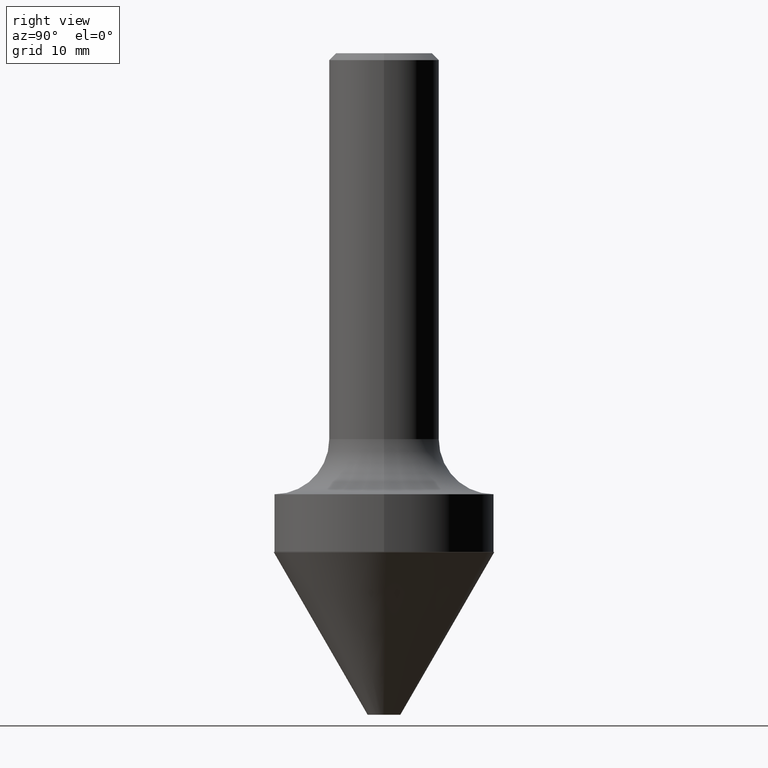
[diagram: clean part render]
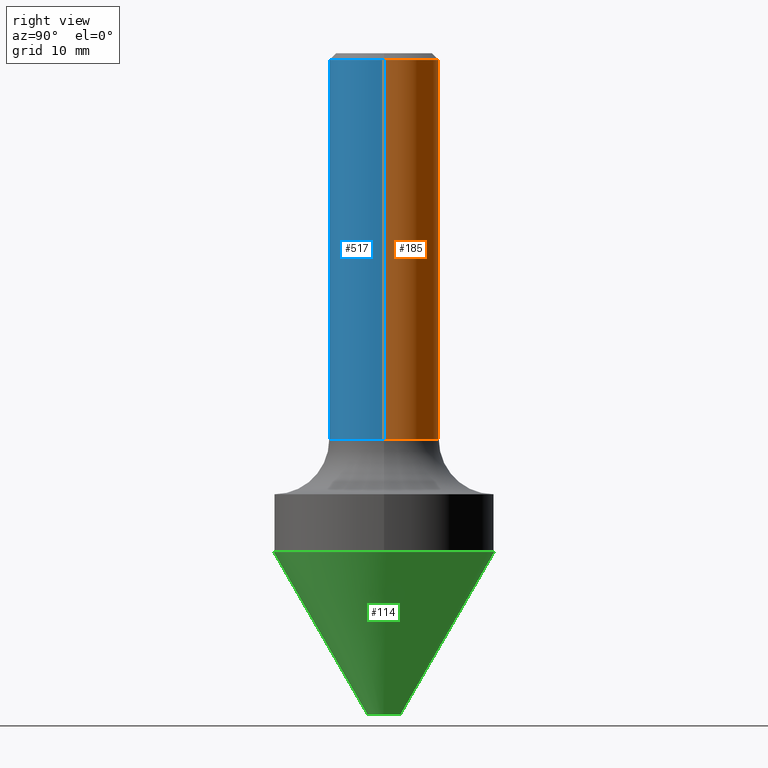
[diagram: same view with three faces highlighted in distinct colors, each labeled with its STEP entity id]
A machine part, right view with three faces highlighted in distinct colors.
Their STEP definitions:

[orange] entity #185 — the highlighted cylindrical surface (partial cylindrical patch) has radius 6.35 mm, axis along (-0, 0, 1).
#9 = DIRECTION ( 'NONE',  ( -2.445468806185136597E-29, 3.491481338843145583E-15, 1.000000000000000000 ) ) ;
#13 = AXIS2_PLACEMENT_3D ( 'NONE', #374, #94, #49 ) ;
#39 = VERTEX_POINT ( 'NONE', #82 ) ;
#49 = DIRECTION ( 'NONE',  ( 1.000000000000000000, -6.982962677686266711E-15, 0.000000000000000000 ) ) ;
#82 = CARTESIAN_POINT ( 'NONE',  ( -0.2500000000000001665, -3.881992251230523010E-15, -1.750000000000000444 ) ) ;
#89 = CARTESIAN_POINT ( 'NONE',  ( 0.2500000000000000000, -1.824058717214789841E-15, -0.03120000000000021020 ) ) ;
#94 = DIRECTION ( 'NONE',  ( -2.445468806185136597E-29, 3.491481338843145583E-15, 1.000000000000000000 ) ) ;
#107 = VERTEX_POINT ( 'NONE', #275 ) ;
#124 = ORIENTED_EDGE ( 'NONE', *, *, #384, .T. ) ;
#125 = CYLINDRICAL_SURFACE ( 'NONE', #297, 0.2500000000000000555 ) ;
#176 = LINE ( 'NONE', #460, #388 ) ;
#184 = AXIS2_PLACEMENT_3D ( 'NONE', #401, #285, #245 ) ;
#185 = ADVANCED_FACE ( 'NONE', ( #455 ), #125, .T. ) ;
#193 = EDGE_CURVE ( 'NONE', #39, #273, #176, .T. ) ;
#225 = EDGE_CURVE ( 'NONE', #354, #273, #227, .T. ) ;
#227 = CIRCLE ( 'NONE', #13, 0.2500000000000000000 ) ;
#229 = ORIENTED_EDGE ( 'NONE', *, *, #225, .F. ) ;
#240 = ORIENTED_EDGE ( 'NONE', *, *, #193, .T. ) ;
#241 = DIRECTION ( 'NONE',  ( -2.445468806185136877E-29, 3.491481338843145188E-15, 1.000000000000000000 ) ) ;
#243 = EDGE_LOOP ( 'NONE', ( #124, #240, #229, #269 ) ) ;
#245 = DIRECTION ( 'NONE',  ( 1.000000000000000000, -6.982962677686265922E-15, 0.000000000000000000 ) ) ;
#269 = ORIENTED_EDGE ( 'NONE', *, *, #315, .F. ) ;
#273 = VERTEX_POINT ( 'NONE', #389 ) ;
#275 = CARTESIAN_POINT ( 'NONE',  ( 0.2500000000000001665, -7.855833012397073715E-15, -1.750000000000000444 ) ) ;
#285 = DIRECTION ( 'NONE',  ( -2.445468806185136597E-29, 3.491481338843145583E-15, 1.000000000000000000 ) ) ;
#288 = CIRCLE ( 'NONE', #184, 0.2500000000000001665 ) ;
#297 = AXIS2_PLACEMENT_3D ( 'NONE', #487, #9, #402 ) ;
#315 = EDGE_CURVE ( 'NONE', #107, #354, #440, .T. ) ;
#324 = CARTESIAN_POINT ( 'NONE',  ( 0.2500000000000000555, -1.745740669421567269E-15, 1.219044193948984228E-29 ) ) ;
#330 = DIRECTION ( 'NONE',  ( -2.445468806185136877E-29, 3.491481338843145188E-15, 1.000000000000000000 ) ) ;
#354 = VERTEX_POINT ( 'NONE', #89 ) ;
#374 = CARTESIAN_POINT ( 'NONE',  ( 7.629862675297678326E-31, -1.089342177719068763E-16, -0.03120000000000021020 ) ) ;
#384 = EDGE_CURVE ( 'NONE', #107, #39, #288, .T. ) ;
#388 = VECTOR ( 'NONE', #330, 39.37007874015748143 ) ;
#389 = CARTESIAN_POINT ( 'NONE',  ( -0.2500000000000000000, 1.636806451649659727E-15, -0.03120000000000021020 ) ) ;
#396 = VECTOR ( 'NONE', #241, 39.37007874015748143 ) ;
#401 = CARTESIAN_POINT ( 'NONE',  ( 4.279570410823989605E-29, -6.110092342975506249E-15, -1.750000000000000444 ) ) ;
#402 = DIRECTION ( 'NONE',  ( 1.000000000000000000, -6.982962677686267499E-15, 4.876176775795935793E-29 ) ) ;
#440 = LINE ( 'NONE', #324, #396 ) ;
#455 = FACE_OUTER_BOUND ( 'NONE', #243, .T. ) ;
#460 = CARTESIAN_POINT ( 'NONE',  ( -0.2500000000000000555, 1.776356839400250859E-15, -1.229733772563726866E-29 ) ) ;
#487 = CARTESIAN_POINT ( 'NONE',  ( 0.000000000000000000, 0.000000000000000000, 0.000000000000000000 ) ) ;

[blue] entity #517 — the highlighted cylindrical surface (partial cylindrical patch) has radius 6.35 mm, axis along (-0, 0, 1).
#39 = VERTEX_POINT ( 'NONE', #82 ) ;
#65 = ORIENTED_EDGE ( 'NONE', *, *, #193, .F. ) ;
#67 = AXIS2_PLACEMENT_3D ( 'NONE', #322, #238, #360 ) ;
#71 = ORIENTED_EDGE ( 'NONE', *, *, #315, .T. ) ;
#82 = CARTESIAN_POINT ( 'NONE',  ( -0.2500000000000001665, -3.881992251230523010E-15, -1.750000000000000444 ) ) ;
#89 = CARTESIAN_POINT ( 'NONE',  ( 0.2500000000000000000, -1.824058717214789841E-15, -0.03120000000000021020 ) ) ;
#100 = DIRECTION ( 'NONE',  ( 1.000000000000000000, -6.982962677686267499E-15, 4.876176775795935793E-29 ) ) ;
#107 = VERTEX_POINT ( 'NONE', #275 ) ;
#136 = DIRECTION ( 'NONE',  ( -2.445468806185136597E-29, 3.491481338843145583E-15, 1.000000000000000000 ) ) ;
#151 = CIRCLE ( 'NONE', #456, 0.2500000000000001665 ) ;
#176 = LINE ( 'NONE', #460, #388 ) ;
#193 = EDGE_CURVE ( 'NONE', #39, #273, #176, .T. ) ;
#218 = CYLINDRICAL_SURFACE ( 'NONE', #399, 0.2500000000000000555 ) ;
#231 = ORIENTED_EDGE ( 'NONE', *, *, #441, .F. ) ;
#238 = DIRECTION ( 'NONE',  ( -2.445468806185136597E-29, 3.491481338843145583E-15, 1.000000000000000000 ) ) ;
#241 = DIRECTION ( 'NONE',  ( -2.445468806185136877E-29, 3.491481338843145188E-15, 1.000000000000000000 ) ) ;
#273 = VERTEX_POINT ( 'NONE', #389 ) ;
#275 = CARTESIAN_POINT ( 'NONE',  ( 0.2500000000000001665, -7.855833012397073715E-15, -1.750000000000000444 ) ) ;
#279 = DIRECTION ( 'NONE',  ( -2.445468806185136597E-29, 3.491481338843145583E-15, 1.000000000000000000 ) ) ;
#294 = FACE_OUTER_BOUND ( 'NONE', #504, .T. ) ;
#315 = EDGE_CURVE ( 'NONE', #107, #354, #440, .T. ) ;
#318 = CARTESIAN_POINT ( 'NONE',  ( 4.279570410823989605E-29, -6.110092342975506249E-15, -1.750000000000000444 ) ) ;
#322 = CARTESIAN_POINT ( 'NONE',  ( 7.629862675297678326E-31, -1.089342177719068763E-16, -0.03120000000000021020 ) ) ;
#324 = CARTESIAN_POINT ( 'NONE',  ( 0.2500000000000000555, -1.745740669421567269E-15, 1.219044193948984228E-29 ) ) ;
#330 = DIRECTION ( 'NONE',  ( -2.445468806185136877E-29, 3.491481338843145188E-15, 1.000000000000000000 ) ) ;
#354 = VERTEX_POINT ( 'NONE', #89 ) ;
#360 = DIRECTION ( 'NONE',  ( 1.000000000000000000, -6.982962677686266711E-15, 0.000000000000000000 ) ) ;
#367 = EDGE_CURVE ( 'NONE', #39, #107, #151, .T. ) ;
#388 = VECTOR ( 'NONE', #330, 39.37007874015748143 ) ;
#389 = CARTESIAN_POINT ( 'NONE',  ( -0.2500000000000000000, 1.636806451649659727E-15, -0.03120000000000021020 ) ) ;
#394 = DIRECTION ( 'NONE',  ( 1.000000000000000000, -6.982962677686265922E-15, 0.000000000000000000 ) ) ;
#396 = VECTOR ( 'NONE', #241, 39.37007874015748143 ) ;
#399 = AXIS2_PLACEMENT_3D ( 'NONE', #496, #136, #100 ) ;
#414 = CIRCLE ( 'NONE', #67, 0.2500000000000000000 ) ;
#440 = LINE ( 'NONE', #324, #396 ) ;
#441 = EDGE_CURVE ( 'NONE', #273, #354, #414, .T. ) ;
#456 = AXIS2_PLACEMENT_3D ( 'NONE', #318, #279, #394 ) ;
#460 = CARTESIAN_POINT ( 'NONE',  ( -0.2500000000000000555, 1.776356839400250859E-15, -1.229733772563726866E-29 ) ) ;
#469 = ORIENTED_EDGE ( 'NONE', *, *, #367, .T. ) ;
#496 = CARTESIAN_POINT ( 'NONE',  ( 0.000000000000000000, 0.000000000000000000, 0.000000000000000000 ) ) ;
#504 = EDGE_LOOP ( 'NONE', ( #65, #469, #71, #231 ) ) ;
#517 = ADVANCED_FACE ( 'NONE', ( #294 ), #218, .T. ) ;

[green] entity #114 — the highlighted conical surface has half-angle 30 deg.
#11 = CONICAL_SURFACE ( 'NONE', #509, 0.4999999999999999445, 0.5235987755983376735 ) ;
#75 = DIRECTION ( 'NONE',  ( -6.982962677686266711E-15, -1.000000000000000000, 0.000000000000000000 ) ) ;
#77 = ORIENTED_EDGE ( 'NONE', *, *, #381, .F. ) ;
#87 = DIRECTION ( 'NONE',  ( -2.523561818578368665E-29, 3.379647700317803682E-15, 1.000000000000000000 ) ) ;
#111 = EDGE_LOOP ( 'NONE', ( #152, #408, #77, #420 ) ) ;
#114 = ADVANCED_FACE ( 'NONE', ( #320 ), #11, .T. ) ;
#120 = LINE ( 'NONE', #205, #511 ) ;
#128 = VERTEX_POINT ( 'NONE', #268 ) ;
#152 = ORIENTED_EDGE ( 'NONE', *, *, #282, .T. ) ;
#161 = CARTESIAN_POINT ( 'NONE',  ( 5.486309880159878324E-29, -7.963684595371283721E-15, -2.262146355975725331 ) ) ;
#177 = LINE ( 'NONE', #215, #359 ) ;
#187 = VERTEX_POINT ( 'NONE', #447 ) ;
#189 = DIRECTION ( 'NONE',  ( -2.523561818578368665E-29, 3.379647700317803682E-15, 1.000000000000000000 ) ) ;
#205 = CARTESIAN_POINT ( 'NONE',  ( -3.491481338843077741E-15, -0.5000000000000078826, -2.262146355975723555 ) ) ;
#215 = CARTESIAN_POINT ( 'NONE',  ( 3.552713678800554572E-15, 0.4999999999999919509, -2.262146355975727108 ) ) ;
#235 = CIRCLE ( 'NONE', #256, 0.4999999999999999445 ) ;
#248 = DIRECTION ( 'NONE',  ( -6.982962677686265922E-15, -1.000000000000000000, 3.278217592397116257E-15 ) ) ;
#254 = VERTEX_POINT ( 'NONE', #492 ) ;
#256 = AXIS2_PLACEMENT_3D ( 'NONE', #161, #87, #248 ) ;
#268 = CARTESIAN_POINT ( 'NONE',  ( -3.491481338843077741E-15, -0.5000000000000078826, -2.262146355975723555 ) ) ;
#282 = EDGE_CURVE ( 'NONE', #254, #478, #467, .T. ) ;
#296 = DIRECTION ( 'NONE',  ( 3.552713678800716288E-15, 0.5000000000000364153, 0.8660254037844175024 ) ) ;
#320 = FACE_OUTER_BOUND ( 'NONE', #111, .T. ) ;
#331 = CARTESIAN_POINT ( 'NONE',  ( 2.039257651631553242E-15, 0.07399999999998961575, -3.000000000000000888 ) ) ;
#359 = VECTOR ( 'NONE', #296, 39.37007874015748854 ) ;
#381 = EDGE_CURVE ( 'NONE', #128, #187, #235, .T. ) ;
#382 = CARTESIAN_POINT ( 'NONE',  ( 7.348329163918454609E-29, -1.045736996656903780E-14, -3.000000000000000888 ) ) ;
#408 = ORIENTED_EDGE ( 'NONE', *, *, #480, .T. ) ;
#420 = ORIENTED_EDGE ( 'NONE', *, *, #433, .F. ) ;
#433 = EDGE_CURVE ( 'NONE', #254, #128, #120, .T. ) ;
#434 = CARTESIAN_POINT ( 'NONE',  ( 5.486309880159878324E-29, -7.963684595371283721E-15, -2.262146355975725331 ) ) ;
#437 = AXIS2_PLACEMENT_3D ( 'NONE', #382, #471, #75 ) ;
#444 = DIRECTION ( 'NONE',  ( -6.982962677686265922E-15, -1.000000000000000000, 3.278217592397116257E-15 ) ) ;
#447 = CARTESIAN_POINT ( 'NONE',  ( 3.552713678800554572E-15, 0.4999999999999919509, -2.262146355975727108 ) ) ;
#467 = CIRCLE ( 'NONE', #437, 0.07400000000000006573 ) ;
#471 = DIRECTION ( 'NONE',  ( -2.523561818578368665E-29, 3.379647700317803682E-15, 1.000000000000000000 ) ) ;
#473 = DIRECTION ( 'NONE',  ( -3.491481338843389735E-15, -0.5000000000000307532, 0.8660254037844209440 ) ) ;
#478 = VERTEX_POINT ( 'NONE', #331 ) ;
#480 = EDGE_CURVE ( 'NONE', #478, #187, #177, .T. ) ;
#492 = CARTESIAN_POINT ( 'NONE',  ( -5.167392381487107236E-16, -0.07400000000001052958, -3.000000000000000888 ) ) ;
#509 = AXIS2_PLACEMENT_3D ( 'NONE', #434, #189, #444 ) ;
#511 = VECTOR ( 'NONE', #473, 39.37007874015748143 ) ;